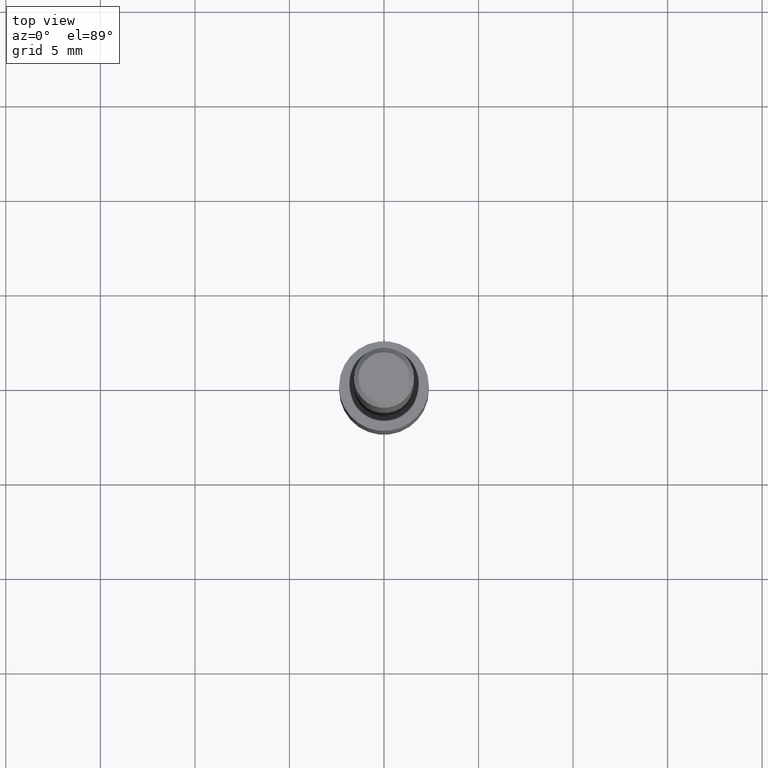
[diagram: clean part render]
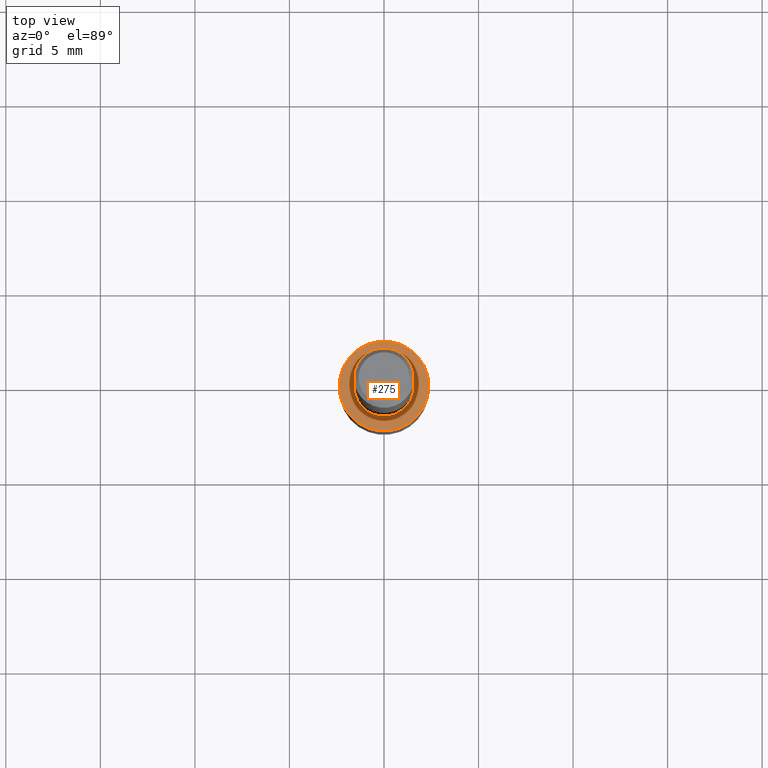
[diagram: same view with one face highlighted and labeled with its STEP entity id]
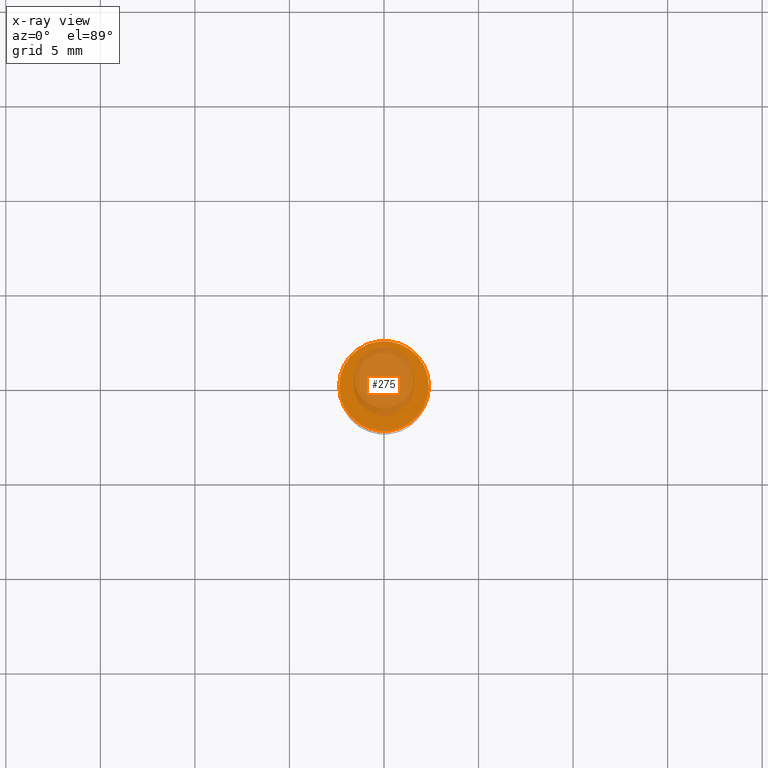
[diagram: x-ray of the same camera — body ghosted, the highlighted face saturated]
A machine part, top view. The second image highlights one B-rep face of the part: STEP entity #275.
The next image is the same camera in x-ray: the body ghosted, the highlighted face saturated — about 51% of this face is hidden behind the body in this view.
In plain terms, the highlighted planar face has unit normal (0, -0, -1).
Its self-contained STEP definition (entity closure, byte-faithful):
#2 = AXIS2_PLACEMENT_3D ( 'NONE', #210, #87, #301 ) ;
#4 = VERTEX_POINT ( 'NONE', #61 ) ;
#22 = DIRECTION ( 'NONE',  ( -2.445468806185136597E-29, 3.491481338843145583E-15, 1.000000000000000000 ) ) ;
#33 = AXIS2_PLACEMENT_3D ( 'NONE', #330, #22, #116 ) ;
#43 = PLANE ( 'NONE',  #155 ) ;
#61 = CARTESIAN_POINT ( 'NONE',  ( -0.09349999999999999978, -3.623880330869323109E-15, -1.000000000000000222 ) ) ;
#87 = DIRECTION ( 'NONE',  ( -2.445468806185136597E-29, 3.491481338843145583E-15, 1.000000000000000000 ) ) ;
#90 = DIRECTION ( 'NONE',  ( 2.438088387897960049E-29, -3.491481338843145188E-15, -1.000000000000000000 ) ) ;
#96 = EDGE_CURVE ( 'NONE', #292, #4, #113, .T. ) ;
#113 = CIRCLE ( 'NONE', #2, 0.09349999999999999978 ) ;
#116 = DIRECTION ( 'NONE',  ( 1.000000000000000000, -6.982962677686265133E-15, 0.000000000000000000 ) ) ;
#117 = CARTESIAN_POINT ( 'NONE',  ( 3.465596751686188839E-29, -2.030600058808780877E-15, -1.000000000000000222 ) ) ;
#155 = AXIS2_PLACEMENT_3D ( 'NONE', #117, #90, #302 ) ;
#210 = CARTESIAN_POINT ( 'NONE',  ( 2.445468806185136877E-29, -3.491481338843145977E-15, -1.000000000000000222 ) ) ;
#226 = EDGE_LOOP ( 'NONE', ( #239, #317 ) ) ;
#239 = ORIENTED_EDGE ( 'NONE', *, *, #96, .T. ) ;
#257 = CARTESIAN_POINT ( 'NONE',  ( 0.09349999999999999978, -4.144388349206811978E-15, -1.000000000000000222 ) ) ;
#270 = FACE_OUTER_BOUND ( 'NONE', #226, .T. ) ;
#275 = ADVANCED_FACE ( 'NONE', ( #270 ), #43, .F. ) ;
#284 = EDGE_CURVE ( 'NONE', #4, #292, #336, .T. ) ;
#292 = VERTEX_POINT ( 'NONE', #257 ) ;
#301 = DIRECTION ( 'NONE',  ( 1.000000000000000000, -6.982962677686265133E-15, 0.000000000000000000 ) ) ;
#302 = DIRECTION ( 'NONE',  ( -1.000000000000000000, 6.982962677686265922E-15, -4.876176775795935793E-29 ) ) ;
#317 = ORIENTED_EDGE ( 'NONE', *, *, #284, .T. ) ;
#330 = CARTESIAN_POINT ( 'NONE',  ( 2.445468806185136877E-29, -3.491481338843145977E-15, -1.000000000000000222 ) ) ;
#336 = CIRCLE ( 'NONE', #33, 0.09349999999999999978 ) ;